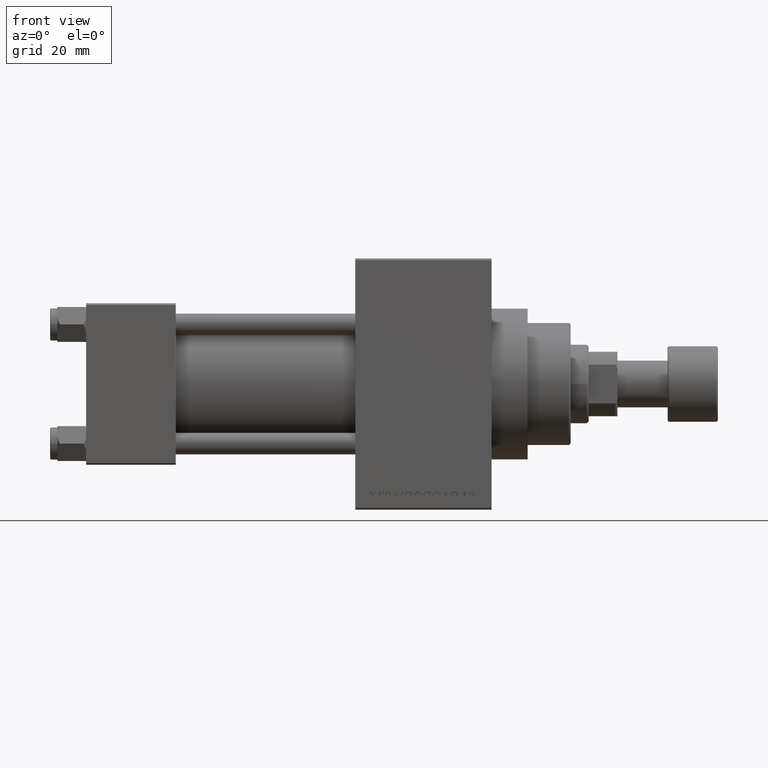
[diagram: clean part render]
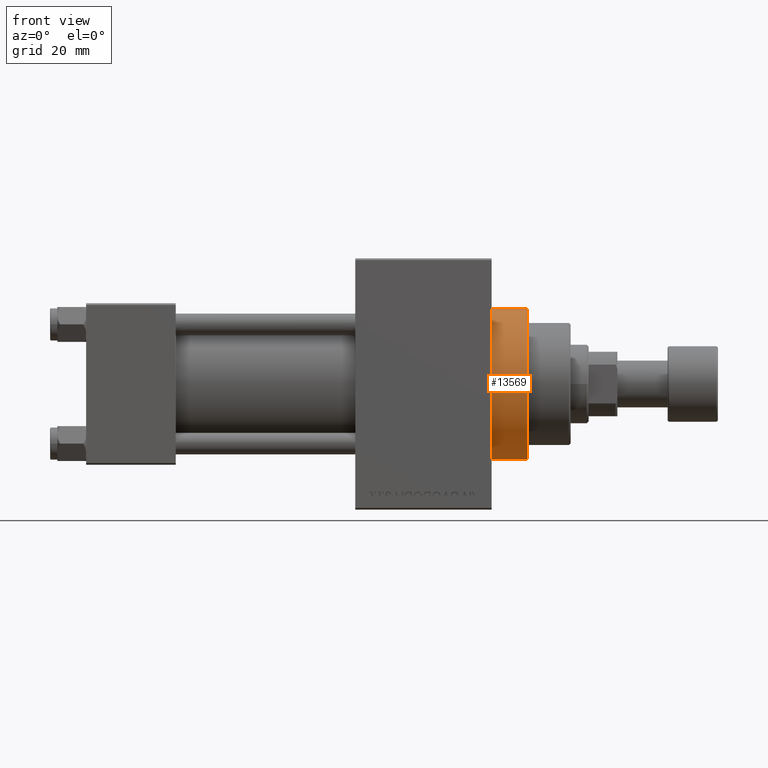
[diagram: same view with one face highlighted and labeled with its STEP entity id]
A machine part, front view. The second image highlights one B-rep face of the part: STEP entity #13569.
In plain terms, the highlighted cylindrical surface (partial cylindrical patch) has radius 21 mm, axis along (-1, -0, -0).
Its self-contained STEP definition (entity closure, byte-faithful):
#341 = CARTESIAN_POINT ( 'NONE',  ( 123.0000000000000142, 2.571758278209441661E-15, -21.00000000000000000 ) ) ;
#696 = ORIENTED_EDGE ( 'NONE', *, *, #3454, .T. ) ;
#3454 = EDGE_CURVE ( 'NONE', #30924, #43344, #30098, .T. ) ;
#4134 = CARTESIAN_POINT ( 'NONE',  ( 123.0000000000000142, 0.000000000000000000, 21.00000000000000000 ) ) ;
#6555 = CARTESIAN_POINT ( 'NONE',  ( 123.0000000000000142, 2.571758278209441661E-15, -21.00000000000000000 ) ) ;
#7643 = ORIENTED_EDGE ( 'NONE', *, *, #41206, .T. ) ;
#8998 = DIRECTION ( 'NONE',  ( 1.000000000000000000, 0.000000000000000000, 0.000000000000000000 ) ) ;
#10544 = DIRECTION ( 'NONE',  ( 0.000000000000000000, 0.000000000000000000, -1.000000000000000000 ) ) ;
#11105 = VECTOR ( 'NONE', #18800, 1000.000000000000000 ) ;
#13569 = ADVANCED_FACE ( 'NONE', ( #44685 ), #44223, .T. ) ;
#15737 = CARTESIAN_POINT ( 'NONE',  ( 113.0000000000000142, 0.000000000000000000, 0.000000000000000000 ) ) ;
#16838 = AXIS2_PLACEMENT_3D ( 'NONE', #42785, #31972, #10544 ) ;
#17275 = VERTEX_POINT ( 'NONE', #341 ) ;
#18130 = VERTEX_POINT ( 'NONE', #20528 ) ;
#18800 = DIRECTION ( 'NONE',  ( -1.000000000000000000, -0.000000000000000000, -0.000000000000000000 ) ) ;
#19367 = VECTOR ( 'NONE', #31350, 1000.000000000000000 ) ;
#19833 = DIRECTION ( 'NONE',  ( 0.000000000000000000, 0.000000000000000000, -1.000000000000000000 ) ) ;
#20528 = CARTESIAN_POINT ( 'NONE',  ( 113.0000000000000142, 2.571758278209441661E-15, -21.00000000000000000 ) ) ;
#21728 = EDGE_CURVE ( 'NONE', #30924, #17275, #22990, .T. ) ;
#22092 = CARTESIAN_POINT ( 'NONE',  ( 123.0000000000000142, 0.000000000000000000, 0.000000000000000000 ) ) ;
#22803 = DIRECTION ( 'NONE',  ( -1.000000000000000000, -0.000000000000000000, -0.000000000000000000 ) ) ;
#22990 = CIRCLE ( 'NONE', #16838, 21.00000000000000000 ) ;
#23586 = AXIS2_PLACEMENT_3D ( 'NONE', #22092, #22803, #47588 ) ;
#27746 = AXIS2_PLACEMENT_3D ( 'NONE', #15737, #8998, #19833 ) ;
#30098 = LINE ( 'NONE', #4134, #11105 ) ;
#30924 = VERTEX_POINT ( 'NONE', #36818 ) ;
#31350 = DIRECTION ( 'NONE',  ( -1.000000000000000000, -0.000000000000000000, -0.000000000000000000 ) ) ;
#31972 = DIRECTION ( 'NONE',  ( 1.000000000000000000, 0.000000000000000000, 0.000000000000000000 ) ) ;
#35892 = LINE ( 'NONE', #6555, #19367 ) ;
#36818 = CARTESIAN_POINT ( 'NONE',  ( 123.0000000000000142, 0.000000000000000000, 21.00000000000000000 ) ) ;
#37732 = CARTESIAN_POINT ( 'NONE',  ( 113.0000000000000142, 0.000000000000000000, 21.00000000000000000 ) ) ;
#41206 = EDGE_CURVE ( 'NONE', #43344, #18130, #43083, .T. ) ;
#41331 = ORIENTED_EDGE ( 'NONE', *, *, #21728, .F. ) ;
#42785 = CARTESIAN_POINT ( 'NONE',  ( 123.0000000000000142, 0.000000000000000000, 0.000000000000000000 ) ) ;
#42792 = EDGE_CURVE ( 'NONE', #17275, #18130, #35892, .T. ) ;
#43083 = CIRCLE ( 'NONE', #27746, 21.00000000000000000 ) ;
#43344 = VERTEX_POINT ( 'NONE', #37732 ) ;
#43982 = ORIENTED_EDGE ( 'NONE', *, *, #42792, .F. ) ;
#44223 = CYLINDRICAL_SURFACE ( 'NONE', #23586, 21.00000000000000000 ) ;
#44634 = EDGE_LOOP ( 'NONE', ( #43982, #41331, #696, #7643 ) ) ;
#44685 = FACE_OUTER_BOUND ( 'NONE', #44634, .T. ) ;
#47588 = DIRECTION ( 'NONE',  ( 0.000000000000000000, 0.000000000000000000, 1.000000000000000000 ) ) ;